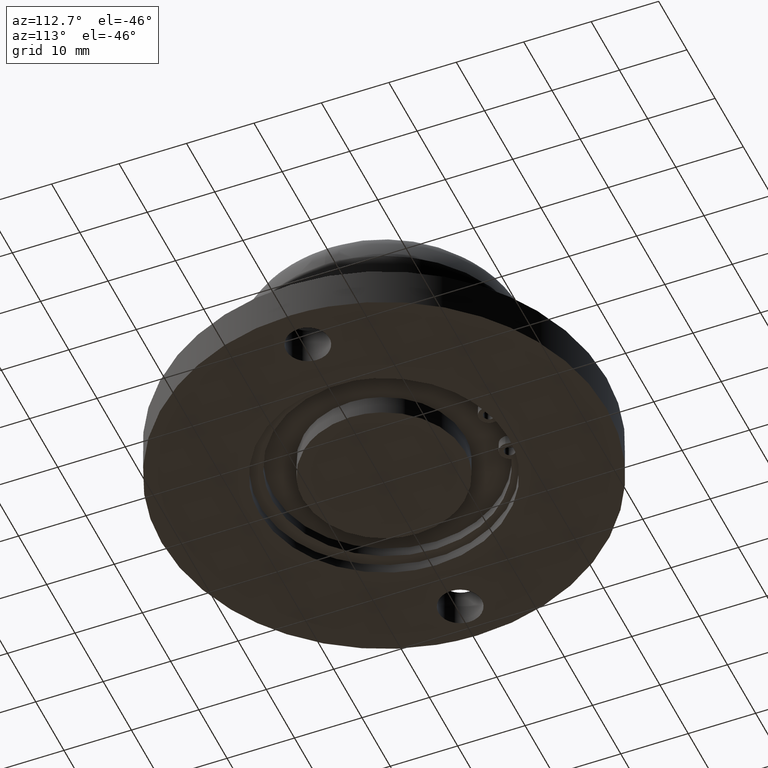
[diagram: clean part render]
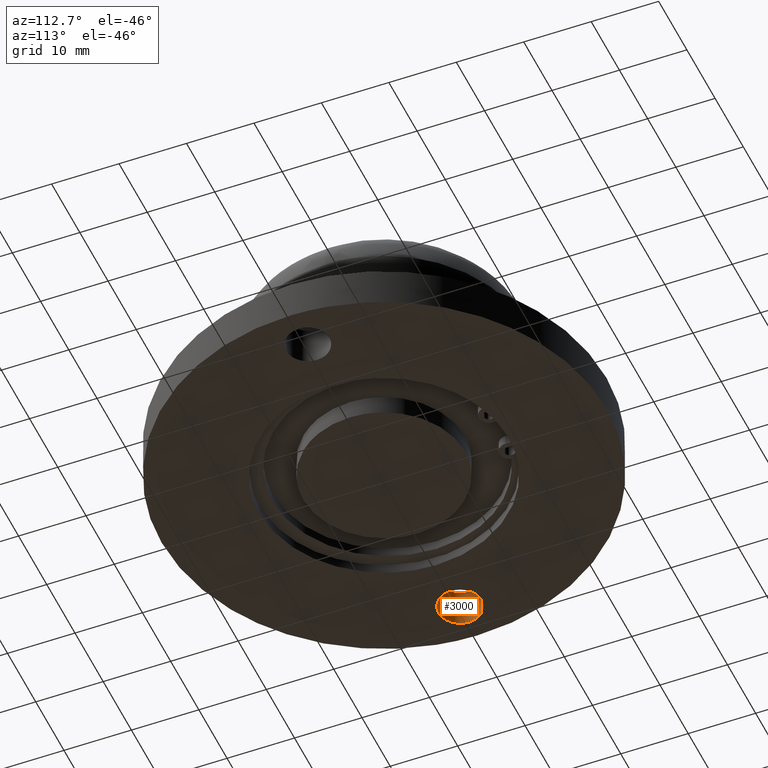
[diagram: same view with one face highlighted and labeled with its STEP entity id]
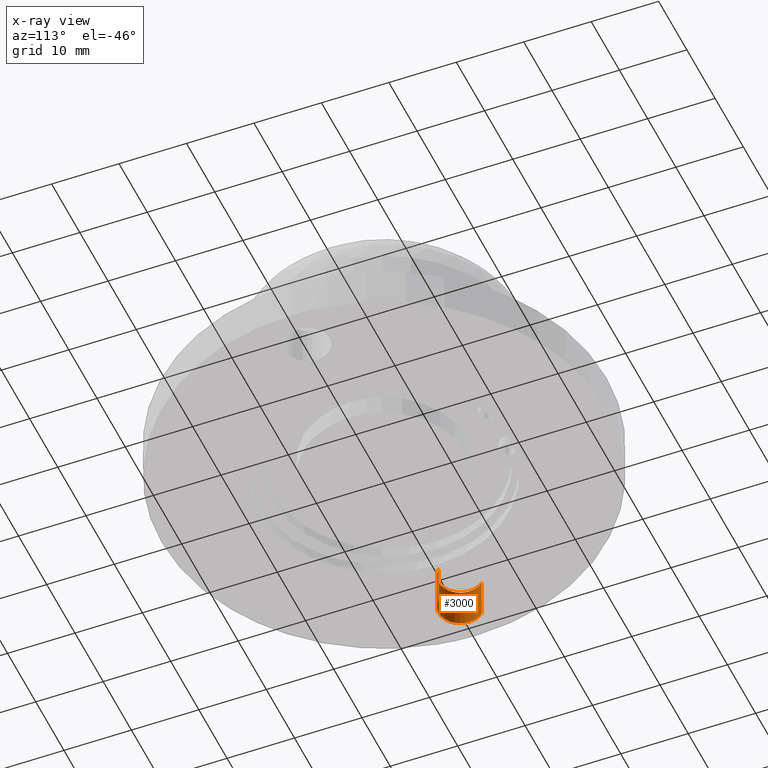
[diagram: x-ray of the same camera — body ghosted, the highlighted face saturated]
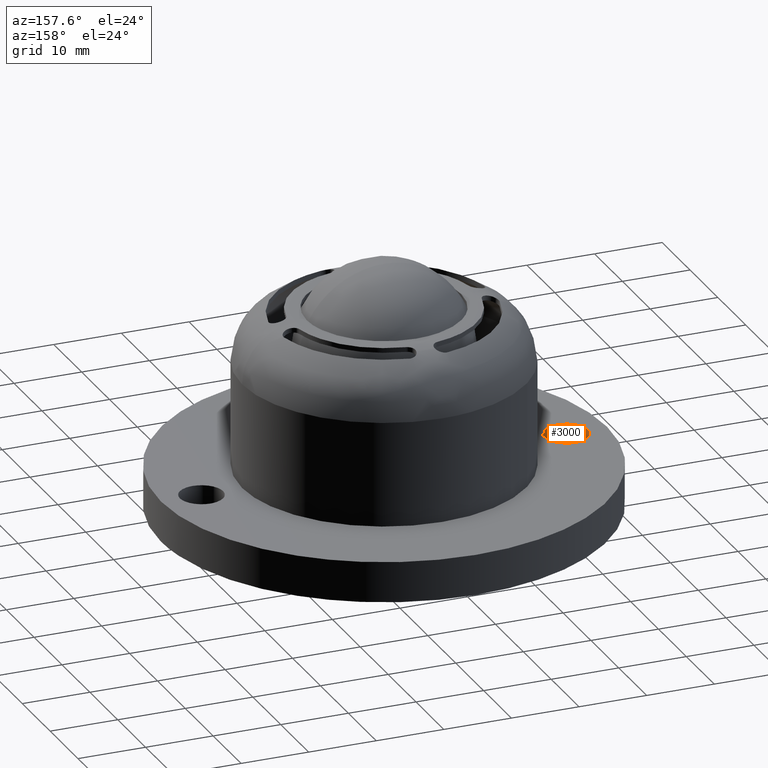
[diagram: same view with one face highlighted and labeled with its STEP entity id]
A machine part, auxiliary view. The second image highlights one B-rep face of the part: STEP entity #3000.
The next image is the same camera in x-ray: the body ghosted, the highlighted face saturated — about 0% of this face is hidden behind the body in this view.
A second angle (auxiliary view) of the same face is appended — the face is thin or edge-on in the first view.
In plain terms, the highlighted face is a freeform B-spline surface patch.
Its self-contained STEP definition (entity closure, byte-faithful):
#2848=CARTESIAN_POINT('',(-27.000261510239589,-3.199999999999923,6.0));
#2849=VERTEX_POINT('',#2848);
#2850=CARTESIAN_POINT('',(-30.200260805403449,0.0,6.0));
#2851=VERTEX_POINT('',#2850);
#2852=CARTESIAN_POINT('',(-27.000261510239589,-3.199999999999923,6.0));
#2853=CARTESIAN_POINT('',(-27.327529927884150,-3.200149760684106,6.000000000000014));
#2854=CARTESIAN_POINT('',(-27.837939766471699,-3.120996699409643,5.999999999999980));
#2855=CARTESIAN_POINT('',(-28.456974216560582,-2.864486661347062,6.000000000000019));
#2856=CARTESIAN_POINT('',(-28.971043111395719,-2.547807563127022,6.000000000000016));
#2857=CARTESIAN_POINT('',(-29.425164849625869,-2.125920393734720,5.999999999999985));
#2858=CARTESIAN_POINT('',(-29.852899431963291,-1.510674845261551,6.000000000000048));
#2859=CARTESIAN_POINT('',(-30.132463778470580,-0.811573713901803,5.999999999999928));
#2860=CARTESIAN_POINT('',(-30.200309307389968,-0.261796056579624,6.000000000000098));
#2861=CARTESIAN_POINT('',(-30.200260805403449,0.0,6.0));
#2862=B_SPLINE_CURVE_WITH_KNOTS('',3,(#2852,#2853,#2854,#2855,#2856,#2857,#2858,#2859,#2860,#2861),.UNSPECIFIED.,.F.,.U.,(4,1,1,1,1,1,1,4),(0.000000112585145,0.981751170204711,1.531539505838427,2.002799411520752,2.788179630136763,3.377221219926264,4.241188873065505,5.026579387950633),.UNSPECIFIED.);
#2863=EDGE_CURVE('',#2849,#2851,#2862,.T.);
#2865=CARTESIAN_POINT('',(-29.321458725561449,2.202734457273921,5.999999999999999));
#2866=VERTEX_POINT('',#2865);
#2867=CARTESIAN_POINT('',(-30.200260805403449,0.0,6.0));
#2868=CARTESIAN_POINT('',(-30.200419308455508,0.316365558529544,6.000000000000019));
#2869=CARTESIAN_POINT('',(-30.126435597963720,0.809748857324523,5.999999999999992));
#2870=CARTESIAN_POINT('',(-29.825320556964598,1.564551351403724,6.000000000000009));
#2871=CARTESIAN_POINT('',(-29.539337178833289,1.973357305859650,6.000000000000016));
#2872=CARTESIAN_POINT('',(-29.321458725561449,2.202734457273921,5.999999999999999));
#2873=B_SPLINE_CURVE_WITH_KNOTS('',3,(#2867,#2868,#2869,#2870,#2871,#2872),.UNSPECIFIED.,.F.,.U.,(4,1,1,4),(0.000000024275767,0.949030314192353,1.480482118846020,2.429512408770577),.UNSPECIFIED.);
#2874=EDGE_CURVE('',#2851,#2866,#2873,.T.);
#2902=CARTESIAN_POINT('',(-24.679062885245440,-2.202734457273922,6.0));
#2903=VERTEX_POINT('',#2902);
#2913=CARTESIAN_POINT('',(-24.679062885245440,-2.202734457273922,6.0));
#2914=CARTESIAN_POINT('',(-24.809407812131450,-2.340102049196390,5.999999999999994));
#2915=CARTESIAN_POINT('',(-25.125116358029050,-2.618588782545571,6.000000000000023));
#2916=CARTESIAN_POINT('',(-25.607440331025650,-2.898765430599362,5.999999999999996));
#2917=CARTESIAN_POINT('',(-26.242862530786802,-3.134357212636506,6.000000000000002));
#2918=CARTESIAN_POINT('',(-26.689131169512230,-3.200152497208400,5.999999999999993));
#2919=CARTESIAN_POINT('',(-27.000261510239589,-3.199999999999923,6.0));
#2920=B_SPLINE_CURVE_WITH_KNOTS('',3,(#2913,#2914,#2915,#2916,#2917,#2918,#2919),.UNSPECIFIED.,.F.,.U.,(4,1,1,1,4),(0.000000029970184,0.568106841522632,1.257971536171946,1.663739426241582,2.597068048157696),.UNSPECIFIED.);
#2921=EDGE_CURVE('',#2903,#2849,#2920,.T.);
#2926=CARTESIAN_POINT('',(-24.679062818164130,-2.202734642220012,6.150000000000000));
#2927=CARTESIAN_POINT('',(-26.881797460384142,-4.523932629459333,6.150000000000000));
#2928=CARTESIAN_POINT('',(-29.202995447623461,-2.321197987239320,6.150000000000000));
#2929=CARTESIAN_POINT('',(-31.524193434862770,-0.118463345019308,6.150000000000000));
#2930=CARTESIAN_POINT('',(-29.321458792642769,2.202734642220012,6.150000000000000));
#2931=CARTESIAN_POINT('',(-24.679062818164130,-2.202734642220012,-0.153750000000001));
#2932=CARTESIAN_POINT('',(-26.881797460384142,-4.523932629459333,-0.153750000000000));
#2933=CARTESIAN_POINT('',(-29.202995447623461,-2.321197987239320,-0.153750000000001));
#2934=CARTESIAN_POINT('',(-31.524193434862770,-0.118463345019308,-0.153750000000000));
#2935=CARTESIAN_POINT('',(-29.321458792642769,2.202734642220012,-0.153750000000001));
#2943=(BOUNDED_SURFACE()B_SPLINE_SURFACE(2,1,((#2926,#2931),(#2927,#2932),(#2928,#2933),(#2929,#2934),(#2930,#2935)),.UNSPECIFIED.,.F.,.F.,.U.)B_SPLINE_SURFACE_WITH_KNOTS((3,2,3),(2,2),(0.0,5.301933598375623,10.603867196751249),(0.0,6.303750000000002),.UNSPECIFIED.)GEOMETRIC_REPRESENTATION_ITEM()RATIONAL_B_SPLINE_SURFACE(((1.0,1.0),(0.707106781186548,0.707106781186548),(1.0,1.0),(0.707106781186548,0.707106781186548),(1.0,1.0)))REPRESENTATION_ITEM('')SURFACE());
#2944=CARTESIAN_POINT('',(-24.679062884499171,-2.202734456487512,1.104908E-012));
#2945=VERTEX_POINT('',#2944);
#2946=CARTESIAN_POINT('',(-27.000261510239589,-3.199999999999923,0.0));
#2947=VERTEX_POINT('',#2946);
#2948=CARTESIAN_POINT('',(-24.679062884499171,-2.202734456487512,1.104908E-012));
#2949=CARTESIAN_POINT('',(-24.846626369077519,-2.379382465185367,1.025146E-012));
#2950=CARTESIAN_POINT('',(-25.170176809983921,-2.650384803253862,8.711340E-013));
#2951=CARTESIAN_POINT('',(-25.694001248643271,-2.937155098037685,6.217896E-013));
#2952=CARTESIAN_POINT('',(-26.283406938177251,-3.143035927437036,3.412281E-013));
#2953=CARTESIAN_POINT('',(-26.729725538702311,-3.200082823259713,1.287771E-013));
#2954=CARTESIAN_POINT('',(-27.000261510239589,-3.199999999999923,0.0));
#2955=B_SPLINE_CURVE_WITH_KNOTS('',3,(#2948,#2949,#2950,#2951,#2952,#2953,#2954),.UNSPECIFIED.,.F.,.U.,(4,1,1,1,4),(0.000000029970298,0.730427227801111,1.257971536697184,1.785482353002038,2.597068049241865),.UNSPECIFIED.);
#2956=EDGE_CURVE('',#2945,#2947,#2955,.T.);
#2957=ORIENTED_EDGE('',*,*,#2956,.T.);
#2958=CARTESIAN_POINT('',(-30.200260805403449,0.0,0.0));
#2959=VERTEX_POINT('',#2958);
#2960=CARTESIAN_POINT('',(-27.000261510239589,-3.199999999999923,0.0));
#2961=CARTESIAN_POINT('',(-27.209699725941491,-3.200020847303292,0.0));
#2962=CARTESIAN_POINT('',(-27.654758279945899,-3.156173043762875,0.0));
#2963=CARTESIAN_POINT('',(-28.257395694305771,-2.965264465292594,0.0));
#2964=CARTESIAN_POINT('',(-28.821388691201609,-2.654837862202204,0.0));
#2965=CARTESIAN_POINT('',(-29.287015566763390,-2.267902390020234,0.0));
#2966=CARTESIAN_POINT('',(-29.684316558428129,-1.777700729899526,0.0));
#2967=CARTESIAN_POINT('',(-29.950922993022079,-1.278876426067828,0.0));
#2968=CARTESIAN_POINT('',(-30.148549065764961,-0.680643247564196,0.0));
#2969=CARTESIAN_POINT('',(-30.200332093257138,-0.261803651181121,0.0));
#2970=CARTESIAN_POINT('',(-30.200260805403449,0.0,0.0));
#2971=B_SPLINE_CURVE_WITH_KNOTS('',3,(#2960,#2961,#2962,#2963,#2964,#2965,#2966,#2967,#2968,#2969,#2970),.UNSPECIFIED.,.F.,.U.,(4,1,1,1,1,1,1,1,4),(0.000000112585145,0.628317887155885,1.335186348080231,1.884973869556310,2.552525608231329,3.141606085942517,3.769934568547281,4.241188873065505,5.026579387950633),.UNSPECIFIED.);
#2972=EDGE_CURVE('',#2947,#2959,#2971,.T.);
#2973=ORIENTED_EDGE('',*,*,#2972,.T.);
#2974=CARTESIAN_POINT('',(-29.321458726307728,2.202734456487512,1.104908E-012));
#2975=VERTEX_POINT('',#2974);
#2976=CARTESIAN_POINT('',(-30.200260805403449,0.0,0.0));
#2977=CARTESIAN_POINT('',(-30.200625153617189,0.392326491461577,1.967939E-013));
#2978=CARTESIAN_POINT('',(-30.082387370144680,1.024735841389334,5.140150E-013));
#2979=CARTESIAN_POINT('',(-29.705635960255041,1.747434055034014,8.765258E-013));
#2980=CARTESIAN_POINT('',(-29.443405264800450,2.074238554784283,1.040453E-012));
#2981=CARTESIAN_POINT('',(-29.321458726307728,2.202734456487512,1.104908E-012));
#2982=B_SPLINE_CURVE_WITH_KNOTS('',3,(#2976,#2977,#2978,#2979,#2980,#2981),.UNSPECIFIED.,.F.,.U.,(4,1,1,4),(0.000000024276636,1.176810615722757,1.898057693471209,2.429512407686417),.UNSPECIFIED.);
#2983=EDGE_CURVE('',#2959,#2975,#2982,.T.);
#2984=ORIENTED_EDGE('',*,*,#2983,.T.);
#2985=CARTESIAN_POINT('',(-29.321458725561449,2.202734457273921,5.999999999999999));
#2986=CARTESIAN_POINT('',(-29.321458726307728,2.202734456487512,1.104908E-012));
#2987=QUASI_UNIFORM_CURVE('',1,(#2985,#2986),.UNSPECIFIED.,.F.,.U.);
#2988=EDGE_CURVE('',#2866,#2975,#2987,.T.);
#2989=ORIENTED_EDGE('',*,*,#2988,.F.);
#2990=ORIENTED_EDGE('',*,*,#2874,.F.);
#2991=ORIENTED_EDGE('',*,*,#2863,.F.);
#2992=ORIENTED_EDGE('',*,*,#2921,.F.);
#2993=CARTESIAN_POINT('',(-24.679062885245440,-2.202734457273922,6.0));
#2994=CARTESIAN_POINT('',(-24.679062884499171,-2.202734456487512,1.104908E-012));
#2995=QUASI_UNIFORM_CURVE('',1,(#2993,#2994),.UNSPECIFIED.,.F.,.U.);
#2996=EDGE_CURVE('',#2903,#2945,#2995,.T.);
#2997=ORIENTED_EDGE('',*,*,#2996,.T.);
#2998=EDGE_LOOP('',(#2957,#2973,#2984,#2989,#2990,#2991,#2992,#2997));
#2999=FACE_OUTER_BOUND('',#2998,.T.);
#3000=ADVANCED_FACE('',(#2999),#2943,.F.);